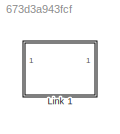
MODEL slx_673d3a943fcf
KIND model
CONFIG AbsTol = auto
CONFIG EnableMultiTasking = off
CONFIG FixedStep = auto
CONFIG MaxStep = auto
CONFIG MinStep = auto
CONFIG RelTol = 1e-3
CONFIG SampleTimeConstraint = Unconstrained
CONFIG SolverName = VariableStepAuto
CONFIG StartTime = 0.0
CONFIG StopTime = 10.0
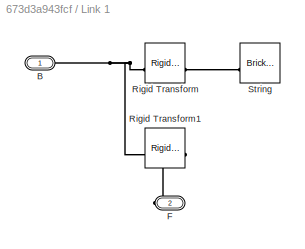
BLOCK [SubSystem] Link 1
BLOCK [PMIOPort] Link 1/B
  Side = Left
BLOCK [PMIOPort] Link 1/F
  Port = 2
  Side = Right
BLOCK [Reference] Link 1/Rigid Transform  REF=sm_lib/Frames and
Transforms/Rigid
Transform
  SourceBlock = sm_lib/Frames and\nTransforms/Rigid\nTransform
  SourceType = Rigid\nTransform
BLOCK [Reference] Link 1/Rigid Transform1  REF=sm_lib/Frames and
Transforms/Rigid
Transform
  SourceBlock = sm_lib/Frames and\nTransforms/Rigid\nTransform
  SourceType = Rigid\nTransform
BLOCK [Reference] Link 1/String  REF=sm_lib/Body Elements/Brick Solid
  SourceBlock = sm_lib/Body Elements/Brick Solid
  SourceType = Brick Solid
PNET net1: Link 1/B:RConn1 -- Link 1/Rigid Transform1:LConn1 -- Link 1/Rigid Transform:LConn1
PLINE Link 1/F:RConn1 -- Link 1/Rigid Transform1:RConn1
PLINE Link 1/Rigid Transform:RConn1 -- Link 1/String:RConn1
note: PNET lines group multi-terminal physical nets as a canonical sorted terminal list (undirected conserving connections); 2-terminal nets keep the pairwise PLINE form
